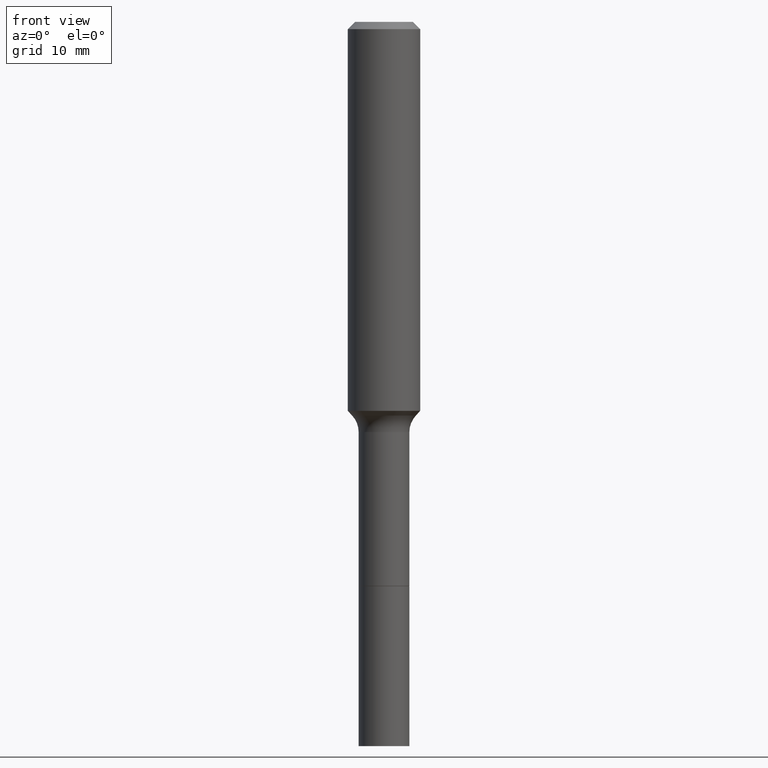
[diagram: clean part render]
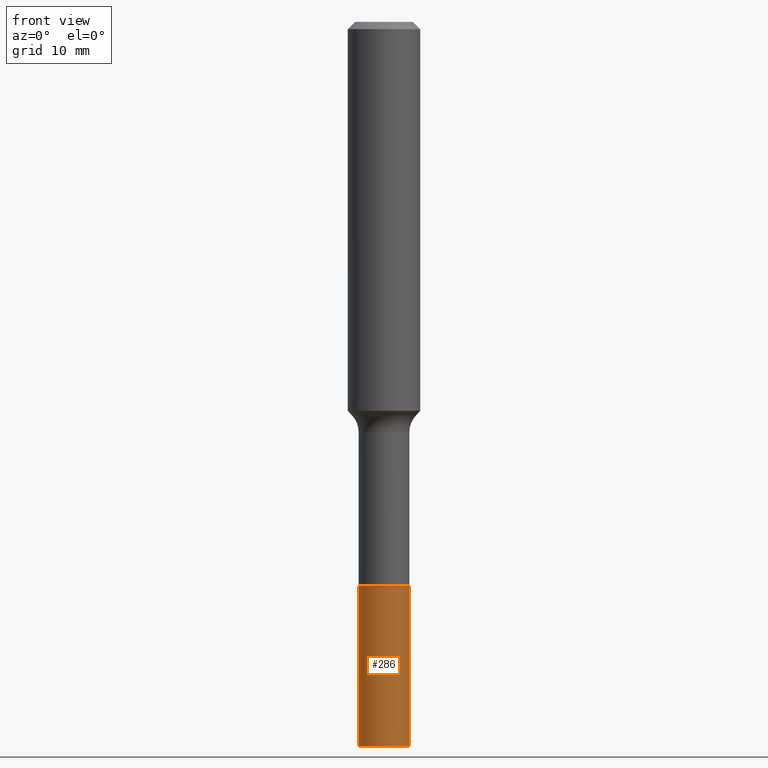
[diagram: same view with one face highlighted and labeled with its STEP entity id]
A machine part, front view. The second image highlights one B-rep face of the part: STEP entity #286.
In plain terms, the highlighted cylindrical surface (edge-blend (fillet) strip) has radius 2.1006 mm, axis along (-0, 0, 1).
Its self-contained STEP definition (entity closure, byte-faithful):
#5 = CIRCLE ( 'NONE', #473, 0.08269999999999999574 ) ;
#24 = CIRCLE ( 'NONE', #175, 0.08270000000000013451 ) ;
#26 = ORIENTED_EDGE ( 'NONE', *, *, #168, .T. ) ;
#34 = EDGE_CURVE ( 'NONE', #502, #223, #5, .T. ) ;
#52 = DIRECTION ( 'NONE',  ( 1.000000000000000000, -6.982962677686267499E-15, 0.000000000000000000 ) ) ;
#59 = VERTEX_POINT ( 'NONE', #422 ) ;
#96 = EDGE_CURVE ( 'NONE', #306, #59, #24, .T. ) ;
#97 = ORIENTED_EDGE ( 'NONE', *, *, #34, .F. ) ;
#108 = ORIENTED_EDGE ( 'NONE', *, *, #128, .F. ) ;
#121 = DIRECTION ( 'NONE',  ( -2.445468806185136597E-29, 3.491481338843145583E-15, 1.000000000000000000 ) ) ;
#128 = EDGE_CURVE ( 'NONE', #306, #502, #155, .T. ) ;
#130 = CARTESIAN_POINT ( 'NONE',  ( 0.08269999999999999574, -7.002514973183811216E-15, -1.840200000000000058 ) ) ;
#155 = LINE ( 'NONE', #238, #299 ) ;
#168 = EDGE_CURVE ( 'NONE', #59, #223, #471, .T. ) ;
#175 = AXIS2_PLACEMENT_3D ( 'NONE', #278, #121, #435 ) ;
#212 = CARTESIAN_POINT ( 'NONE',  ( 4.500151697141887719E-29, -6.425023959739156537E-15, -1.840200000000000058 ) ) ;
#213 = EDGE_LOOP ( 'NONE', ( #108, #263, #26, #97 ) ) ;
#223 = VERTEX_POINT ( 'NONE', #130 ) ;
#238 = CARTESIAN_POINT ( 'NONE',  ( -0.08270000000000006513, -5.837405117265553713E-15, -1.840200000000000058 ) ) ;
#263 = ORIENTED_EDGE ( 'NONE', *, *, #96, .T. ) ;
#265 = DIRECTION ( 'NONE',  ( 1.000000000000000000, -6.982962677686273021E-15, 0.000000000000000000 ) ) ;
#278 = CARTESIAN_POINT ( 'NONE',  ( 5.776686413970529753E-29, -8.247577218615279626E-15, -2.362200000000000077 ) ) ;
#286 = ADVANCED_FACE ( 'NONE', ( #419 ), #411, .T. ) ;
#299 = VECTOR ( 'NONE', #437, 39.37007874015748143 ) ;
#306 = VERTEX_POINT ( 'NONE', #325 ) ;
#325 = CARTESIAN_POINT ( 'NONE',  ( -0.08270000000000013451, -6.748681746703613286E-15, -2.362200000000000077 ) ) ;
#360 = AXIS2_PLACEMENT_3D ( 'NONE', #212, #485, #52 ) ;
#390 = CARTESIAN_POINT ( 'NONE',  ( 0.08270000000000006513, -7.002514973183811216E-15, -1.840200000000000058 ) ) ;
#397 = CARTESIAN_POINT ( 'NONE',  ( -0.08269999999999999574, -6.748681746703614864E-15, -1.840200000000000058 ) ) ;
#403 = DIRECTION ( 'NONE',  ( -2.445468806185136877E-29, 3.491481338843145188E-15, 1.000000000000000000 ) ) ;
#408 = VECTOR ( 'NONE', #403, 39.37007874015748143 ) ;
#411 = CYLINDRICAL_SURFACE ( 'NONE', #360, 0.08270000000000006513 ) ;
#419 = FACE_OUTER_BOUND ( 'NONE', #213, .T. ) ;
#422 = CARTESIAN_POINT ( 'NONE',  ( 0.08270000000000013451, -8.825068232059933517E-15, -2.362200000000000077 ) ) ;
#425 = CARTESIAN_POINT ( 'NONE',  ( 4.500151697141887719E-29, -6.425023959739156537E-15, -1.840200000000000058 ) ) ;
#428 = DIRECTION ( 'NONE',  ( -2.445468806185136597E-29, 3.491481338843145583E-15, 1.000000000000000000 ) ) ;
#435 = DIRECTION ( 'NONE',  ( 1.000000000000000000, -6.982962677686261977E-15, 0.000000000000000000 ) ) ;
#437 = DIRECTION ( 'NONE',  ( -2.445468806185136877E-29, 3.491481338843145188E-15, 1.000000000000000000 ) ) ;
#471 = LINE ( 'NONE', #390, #408 ) ;
#473 = AXIS2_PLACEMENT_3D ( 'NONE', #425, #428, #265 ) ;
#485 = DIRECTION ( 'NONE',  ( -2.445468806185136597E-29, 3.491481338843145583E-15, 1.000000000000000000 ) ) ;
#502 = VERTEX_POINT ( 'NONE', #397 ) ;